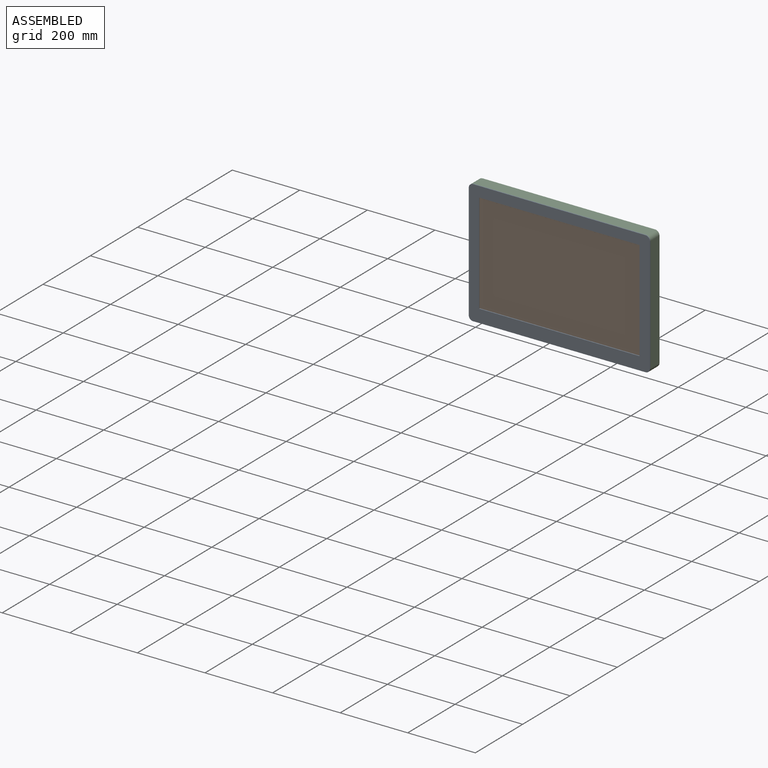
[diagram: assembled view]
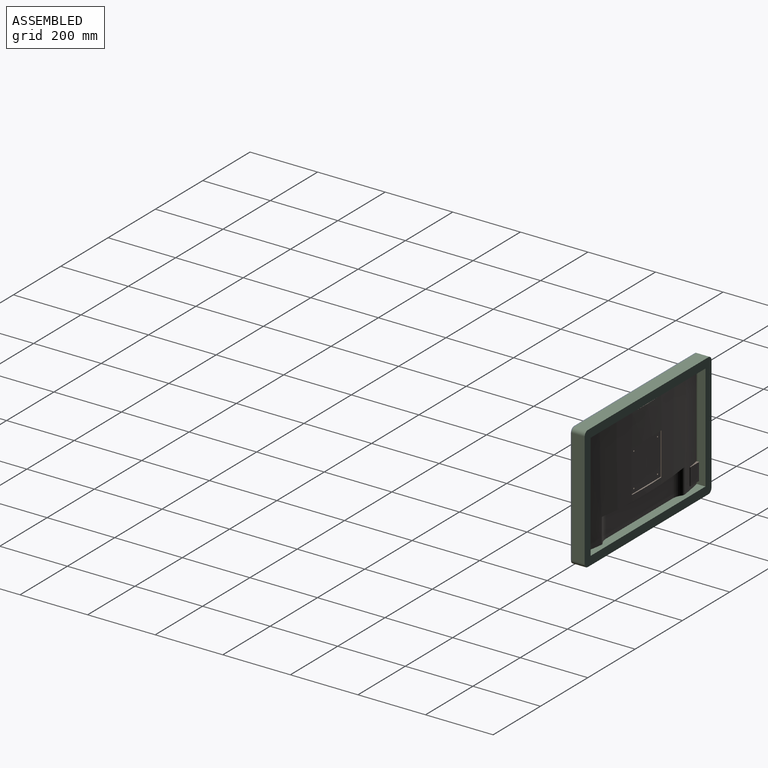
[diagram: assembled view, second angle]
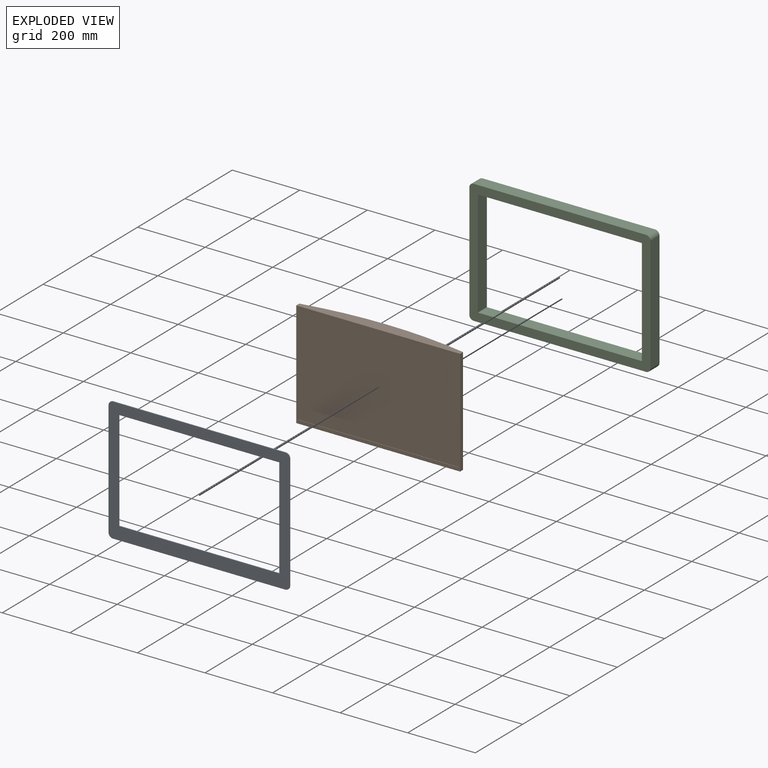
[diagram: exploded view]
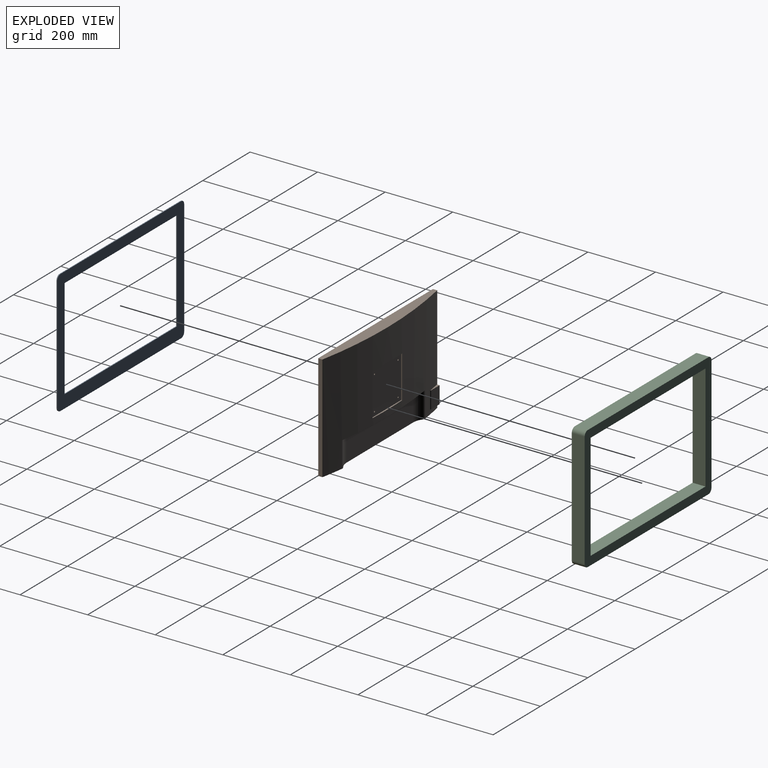
[diagram: exploded view, second angle]
ASSEMBLY  parts=3 mates=3
PART A: 14 faces, bbox 536x2.5x366.5 mm
  f0: plane 297.18x2.54mm, normal (-1,0,0), area 754.8mm2, adj f1,f7,f8,f9
  f1: plane 474.98x2.54mm, normal (0,0,1), area 1206.4mm2, adj f0,f2,f8,f9
  f2: plane 297.18x2.54mm, normal (1,0,0), area 754.8mm2, adj f1,f7,f8,f9
  f3: plane 510.56x2.54mm, normal (0,0,-1), area 1296.8mm2, adj f8,f9,f10,f13
  f4: plane 341.12x2.54mm, normal (1,0,0), area 866.4mm2, adj f8,f9,f10,f11
  f5: plane 510.56x2.54mm, normal (0,0,1), area 1296.8mm2, adj f8,f9,f11,f12
  f6: plane 341.12x2.54mm, normal (-1,0,0), area 866.4mm2, adj f8,f9,f12,f13
  f7: plane 474.98x2.54mm, normal (0,0,-1), area 1206.4mm2, adj f0,f2,f8,f9
  f8: plane 535.96x366.52mm, normal (0,-1,0), area 55146.7mm2, adj f0,f1,f2,f3,f4,f5,f6,f7
  f9: plane 535.96x366.52mm, normal (0,1,0), area 55146.7mm2, adj f0,f1,f2,f3,f4,f5,f6,f7
  f10: cylinder r=12.7mm len=12.7mm, axis (0,-1,0), area 50.7mm2, adj f3,f4,f8,f9
  f11: cylinder r=12.7mm len=12.7mm, axis (0,-1,0), area 50.7mm2, adj f4,f5,f8,f9
  f12: cylinder r=12.7mm len=12.7mm, axis (0,-1,0), area 50.7mm2, adj f5,f6,f8,f9
  f13: cylinder r=12.7mm len=12.7mm, axis (0,-1,0), area 50.7mm2, adj f3,f6,f8,f9
PART B: 56 faces, bbox 485.1x36.1x315 mm
  f0: cylinder r=1270mm len=484.33mm, axis (0,0,1), area 108830.4mm2, adj f3,f5,f13,f14,f15,f16,f17,f20
  f1: plane 313.96x11.79mm, normal (-1,0,0), area 3700.9mm2, adj f37,f40,f43,f44
  f2: plane 313.96x11.79mm, normal (1,0,0), area 3700.9mm2, adj f30,f31,f32,f33
  f3: plane 353.06x23.38mm, normal (0,0,-1), area 6471.4mm2, adj f0,f7,f17,f18,f19,f20
  f4: plane 484.14x22.84mm, normal (0,0,-1), area 6765.7mm2, adj f33,f36,f38,f39,f42,f44,f45,f47
  f5: plane 484.14x36.08mm, normal (0,0,1), area 13724.5mm2, adj f0,f6,f30,f40
  f6: plane 484.14x314.46mm, normal (0,-1,0), area 9881.7mm2, adj f5,f8,f9,f10,f29,f32,f37,f38
  f7: plane 281.94x75.7mm, normal (0,1,0), area 21342.9mm2, adj f3,f18,f19,f45
  f8: plane 299.72x0.51mm, normal (1,0,0), area 152.1mm2, adj f6,f10,f11,f29,f50
  f9: plane 299.72x0.51mm, normal (-1,0,0), area 152.1mm2, adj f6,f10,f11,f29,f50
  f10: plane 474.98x0.01mm, normal (0,0,-1), area 3.8mm2, adj f6,f8,f9,f50
  f11: plane 474.98x298.71mm, normal (0,-1,0), area 141882.2mm2, adj f8,f9,f29,f50
  f12: plane 125x125mm, normal (0,1,0), area 15561.4mm2, adj f13,f14,f15,f16,f21,f23,f25,f27
  f13: plane 125x2.79mm, normal (-1,0,0), area 349mm2, adj f0,f12,f14,f16
  f14: plane 125x4.33mm, normal (0,0,-1), area 477.2mm2, adj f0,f12,f13,f15
  f15: plane 125x2.79mm, normal (1,0,0), area 349mm2, adj f0,f12,f14,f16
  f16: plane 125x4.33mm, normal (0,0,1), area 477.2mm2, adj f0,f12,f13,f15
  f17: cylinder r=12.7mm len=75.7mm, axis (0,0,-1), area 717.8mm2, adj f0,f3,f18,f49
  f18: cylinder r=45.07mm len=75.7mm, axis (0,0,-1), area 2154.1mm2, adj f3,f7,f17,f47
  f19: cylinder r=45.07mm len=75.7mm, axis (0,0,-1), area 2154.1mm2, adj f3,f7,f20,f42
  f20: cylinder r=12.7mm len=75.7mm, axis (0,0,-1), area 717.8mm2, adj f0,f3,f19,f39
  f21: cylinder r=2.25mm len=15mm, axis (0,1,0), area 212.1mm2, adj f12,f22
  f22: cone r=0mm half-angle=59deg, axis (0,1,0), area 18.6mm2, adj f21
  f23: cylinder r=2.25mm len=15mm, axis (0,1,0), area 212.1mm2, adj f12,f24
  f24: cone r=0mm half-angle=59deg, axis (0,1,0), area 18.6mm2, adj f23
  f25: cylinder r=2.25mm len=15mm, axis (0,1,0), area 212.1mm2, adj f12,f26
  f26: cone r=0mm half-angle=59deg, axis (0,1,0), area 18.6mm2, adj f25
  f27: cylinder r=2.25mm len=15mm, axis (0,1,0), area 212.1mm2, adj f12,f28
  f28: cone r=0mm half-angle=59deg, axis (0,1,0), area 18.6mm2, adj f27
  f29: plane 474.98x0.51mm, normal (0,-0.71,0.71), area 341.2mm2, adj f6,f8,f9,f11
  f30: cylinder r=0.5mm len=12.8mm, axis (0,1,0), area 9.8mm2, adj f0,f2,f5,f31,f32
  f31: cylinder r=0.5mm len=314.45mm, axis (0,0,1), area 216.7mm2, adj f0,f2,f30,f34
  f32: cylinder r=0.5mm len=314.46mm, axis (0,0,1), area 246.8mm2, adj f2,f6,f30,f35
  f33: cylinder r=0.5mm len=11.79mm, axis (0,-1,0), area 9.3mm2, adj f2,f4,f34,f35
  f34: sphere r=0.5mm, area 0.3mm2, adj f31,f33,f36
  f35: sphere r=0.5mm, area 0.4mm2, adj f32,f33,f38
  f36: torus R=1269.5mm, axis (0,0,-1), area 52.3mm2, adj f0,f4,f34,f39
  f37: cylinder r=0.5mm len=314.46mm, axis (0,0,-1), area 246.8mm2, adj f1,f6,f40,f41
  f38: cylinder r=0.5mm len=484.14mm, axis (1,0,0), area 380.2mm2, adj f4,f6,f35,f41
  f39: torus R=12.2mm, axis (0,0,-1), area 7.3mm2, adj f4,f20,f36,f42
  f40: cylinder r=0.5mm len=12.8mm, axis (0,-1,0), area 9.8mm2, adj f0,f1,f5,f37,f43
  f41: sphere r=0.5mm, area 0.4mm2, adj f37,f38,f44
  f42: torus R=45.57mm, axis (0,0,-1), area 22.4mm2, adj f4,f19,f39,f45
  f43: cylinder r=0.5mm len=314.45mm, axis (0,0,1), area 216.7mm2, adj f0,f1,f40,f46
  f44: cylinder r=0.5mm len=11.79mm, axis (0,1,0), area 9.3mm2, adj f1,f4,f41,f46
  f45: cylinder r=0.5mm len=281.94mm, axis (1,0,0), area 221.4mm2, adj f4,f7,f42,f47
  f46: sphere r=0.5mm, area 0.3mm2, adj f43,f44,f48
  f47: torus R=45.57mm, axis (0,0,-1), area 22.4mm2, adj f4,f18,f45,f49
  f48: torus R=1269.5mm, axis (0,0,-1), area 52.3mm2, adj f0,f4,f46,f49
  f49: torus R=12.2mm, axis (0,0,-1), area 7.3mm2, adj f4,f17,f47,f48
  f50: cylinder r=0.5mm len=474.98mm, axis (-1,0,0), area 373mm2, adj f8,f9,f10,f11
  f51: plane 38.1x7.8mm, normal (0,0,-1), area 163.7mm2, adj f0,f53,f54,f55
  f52: plane 38.1x7.8mm, normal (0,0,1), area 163.7mm2, adj f0,f53,f54,f55
  f53: plane 50.8x7.8mm, normal (-1,0,0), area 396.4mm2, adj f0,f51,f52,f54
  f54: plane 50.8x35.02mm, normal (0,1,0), area 1778.8mm2, adj f51,f52,f53,f55
  f55: cylinder r=5.08mm len=50.8mm, axis (0,0,1), area 168.4mm2, adj f0,f51,f52,f54
PART C: 14 faces, bbox 536x38.1x366.5 mm
  f0: plane 510.56x38.1mm, normal (0,0,-1), area 19452.2mm2, adj f8,f9,f10,f13
  f1: plane 341.12x38.1mm, normal (1,0,0), area 12996.7mm2, adj f8,f9,f10,f11
  f2: plane 510.56x38.1mm, normal (0,0,1), area 19452.2mm2, adj f8,f9,f11,f12
  f3: plane 315.72x38.1mm, normal (1,0,0), area 12029mm2, adj f4,f6,f8,f9
  f4: plane 485.16x38.1mm, normal (0,0,-1), area 18484.4mm2, adj f3,f5,f8,f9
  f5: plane 315.72x38.1mm, normal (-1,0,0), area 12029mm2, adj f4,f6,f8,f9
  f6: plane 485.16x38.1mm, normal (0,0,1), area 18484.4mm2, adj f3,f5,f8,f9
  f7: plane 341.12x38.1mm, normal (-1,0,0), area 12996.7mm2, adj f8,f9,f12,f13
  f8: plane 535.96x366.52mm, normal (0,1,0), area 43126.8mm2, adj f0,f1,f2,f3,f4,f5,f6,f7
  f9: plane 535.96x366.52mm, normal (0,-1,0), area 43126.8mm2, adj f0,f1,f2,f3,f4,f5,f6,f7
  f10: cylinder r=12.7mm len=38.1mm, axis (0,1,0), area 760.1mm2, adj f0,f1,f8,f9
  f11: cylinder r=12.7mm len=38.1mm, axis (0,1,0), area 760.1mm2, adj f1,f2,f8,f9
  f12: cylinder r=12.7mm len=38.1mm, axis (0,1,0), area 760.1mm2, adj f2,f7,f8,f9
  f13: cylinder r=12.7mm len=38.1mm, axis (0,1,0), area 760.1mm2, adj f0,f7,f8,f9
PLACE A rot(axis=(0,0,1),180deg) t=(-714.95,207.65,101.99)mm
PLACE B t=(-957.28,209.69,257.05)mm
PLACE C t=(-1199.6,210.19,101.99)mm
MATE fastened C.f9 <-> B.f11  axis (0,-1,0) through (-957.28,210.19,259.59)mm
MATE planar A.f13 <-> C.f9  axis (0,1,0) through (-702,210.19,89.03)mm
MATE fastened A.f13 <-> C.f10  axis (0,-1,0) through (-702,207.65,89.03)mm
